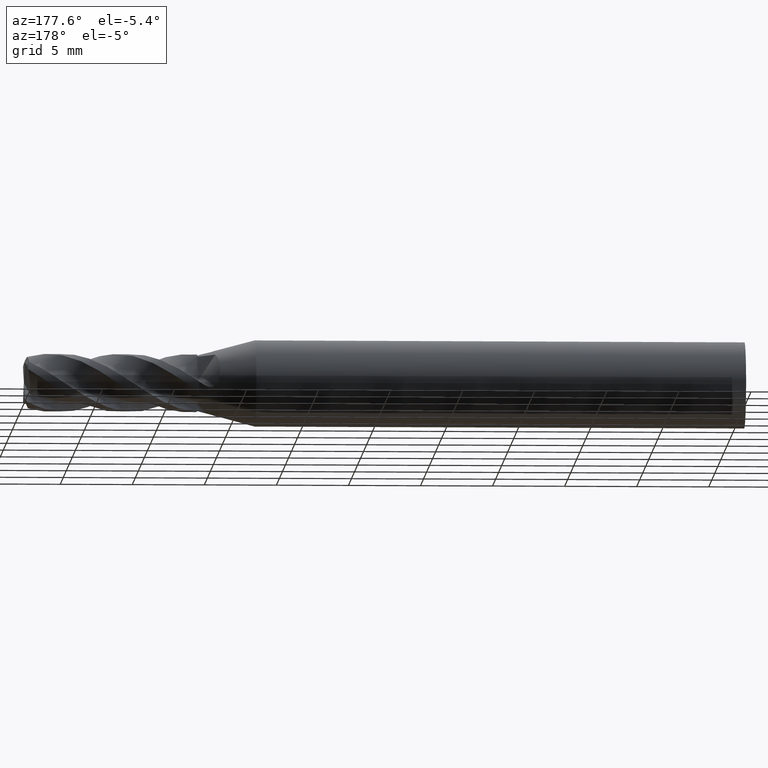
[diagram: clean part render]
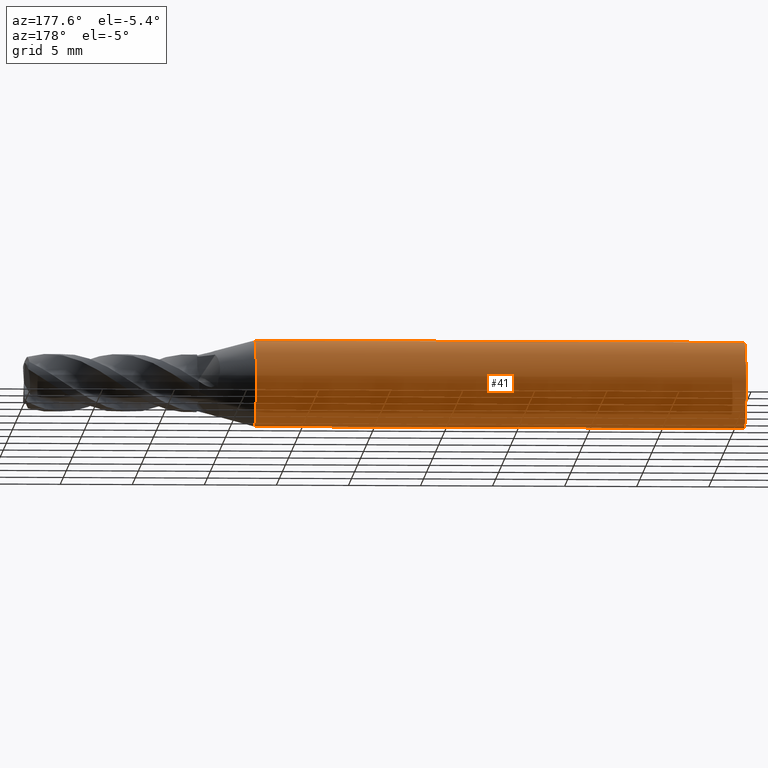
[diagram: same view with one face highlighted and labeled with its STEP entity id]
A machine part, auxiliary view. The second image highlights one B-rep face of the part: STEP entity #41.
In plain terms, the highlighted cylindrical surface (partial cylindrical patch) has radius 3 mm, axis along (-1, -0, -0).
Its self-contained STEP definition (entity closure, byte-faithful):
#41 = ADVANCED_FACE ( 'NONE', ( #7172 ), #7174, .T. ) ;
#121 = EDGE_CURVE ( 'NONE', #7036, #7039, #7226, .T. ) ;
#195 = EDGE_CURVE ( 'NONE', #7038, #7039, #7122, .T. ) ;
#197 = EDGE_CURVE ( 'NONE', #7035, #7038, #7129, .T. ) ;
#202 = EDGE_CURVE ( 'NONE', #7035, #7036, #7131, .T. ) ;
#242 = AXIS2_PLACEMENT_3D ( 'NONE', #7651, #7650, #7648 ) ;
#297 = AXIS2_PLACEMENT_3D ( 'NONE', #2733, #2737, #2738 ) ;
#326 = AXIS2_PLACEMENT_3D ( 'NONE', #6782, #6792, #6793 ) ;
#2725 = CARTESIAN_POINT ( 'NONE',  ( -39.76065438357068200, 3.673940397442066800E-016, -3.000000000000006200 ) ) ;
#2731 = DIRECTION ( 'NONE',  ( -1.000000000000000000, -0.0000000000000000000, -0.0000000000000000000 ) ) ;
#2733 = CARTESIAN_POINT ( 'NONE',  ( -2.018653347947311900, 0.0000000000000000000, 0.0000000000000000000 ) ) ;
#2737 = DIRECTION ( 'NONE',  ( -1.000000000000000000, -0.0000000000000000000, -0.0000000000000000000 ) ) ;
#2738 = DIRECTION ( 'NONE',  ( 0.0000000000000000000, 0.0000000000000000000, 1.000000000000000000 ) ) ;
#2750 = CARTESIAN_POINT ( 'NONE',  ( -39.76065438357068200, 0.0000000000000000000, 3.000000000000006200 ) ) ;
#2751 = DIRECTION ( 'NONE',  ( -1.000000000000000000, -0.0000000000000000000, -0.0000000000000000000 ) ) ;
#4991 = CARTESIAN_POINT ( 'NONE',  ( -2.018653347947311900, 0.0000000000000000000, 3.000000000000009800 ) ) ;
#4992 = CARTESIAN_POINT ( 'NONE',  ( -36.00000000000000700, 0.0000000000000000000, 3.000000000000002700 ) ) ;
#4994 = CARTESIAN_POINT ( 'NONE',  ( -2.018653347947311900, 3.673940397442071200E-016, -3.000000000000009800 ) ) ;
#4995 = CARTESIAN_POINT ( 'NONE',  ( -36.00000000000000700, 3.673940397442064800E-016, -3.000000000000002700 ) ) ;
#6782 = CARTESIAN_POINT ( 'NONE',  ( -36.00000000000000700, 0.0000000000000000000, 0.0000000000000000000 ) ) ;
#6792 = DIRECTION ( 'NONE',  ( -1.000000000000000000, -0.0000000000000000000, -0.0000000000000000000 ) ) ;
#6793 = DIRECTION ( 'NONE',  ( 0.0000000000000000000, 0.0000000000000000000, 1.000000000000000000 ) ) ;
#7035 = VERTEX_POINT ( 'NONE', #4991 ) ;
#7036 = VERTEX_POINT ( 'NONE', #4992 ) ;
#7038 = VERTEX_POINT ( 'NONE', #4994 ) ;
#7039 = VERTEX_POINT ( 'NONE', #4995 ) ;
#7122 = LINE ( 'NONE', #2725, #7132 ) ;
#7129 = CIRCLE ( 'NONE', #297, 3.000000000000009800 ) ;
#7131 = LINE ( 'NONE', #2750, #7189 ) ;
#7132 = VECTOR ( 'NONE', #2731, 1000.000000000000000 ) ;
#7162 = ORIENTED_EDGE ( 'NONE', *, *, #197, .T. ) ;
#7172 = FACE_OUTER_BOUND ( 'NONE', #7451, .T. ) ;
#7174 = CYLINDRICAL_SURFACE ( 'NONE', #242, 3.000000000000006200 ) ;
#7189 = VECTOR ( 'NONE', #2751, 1000.000000000000000 ) ;
#7226 = CIRCLE ( 'NONE', #326, 3.000000000000002700 ) ;
#7368 = ORIENTED_EDGE ( 'NONE', *, *, #121, .F. ) ;
#7451 = EDGE_LOOP ( 'NONE', ( #7162, #8163, #7368, #7506 ) ) ;
#7506 = ORIENTED_EDGE ( 'NONE', *, *, #202, .F. ) ;
#7648 = DIRECTION ( 'NONE',  ( 0.0000000000000000000, 0.0000000000000000000, 1.000000000000000000 ) ) ;
#7650 = DIRECTION ( 'NONE',  ( -1.000000000000000000, -0.0000000000000000000, -0.0000000000000000000 ) ) ;
#7651 = CARTESIAN_POINT ( 'NONE',  ( -39.76065438357068200, 0.0000000000000000000, 0.0000000000000000000 ) ) ;
#8163 = ORIENTED_EDGE ( 'NONE', *, *, #195, .T. ) ;